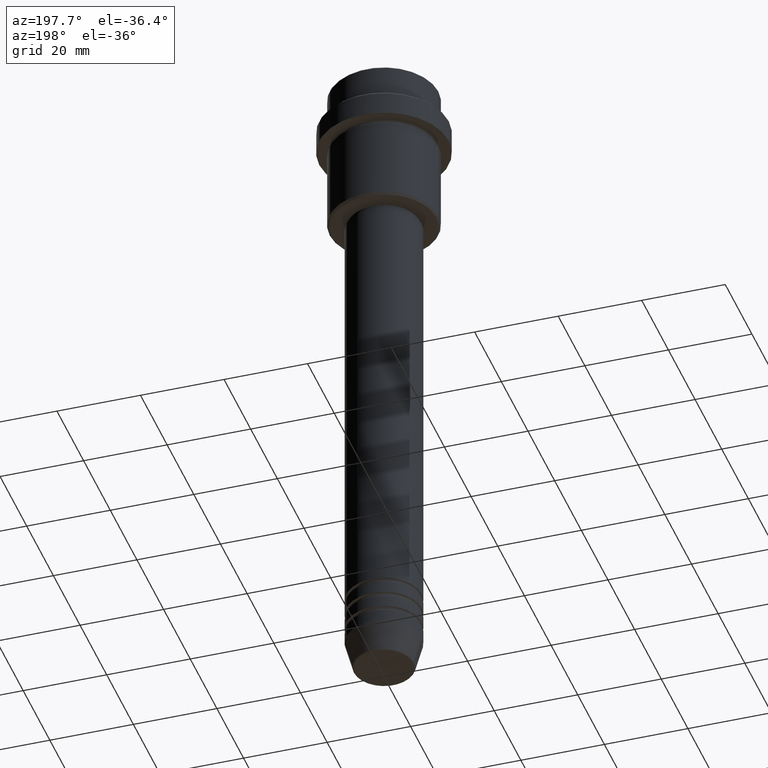
[diagram: clean part render]
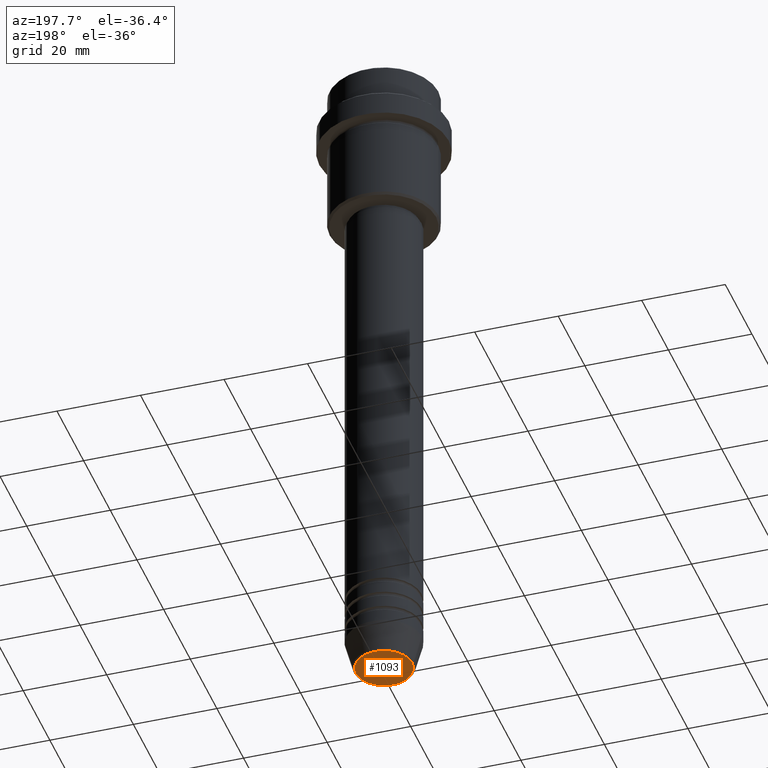
[diagram: same view with one face highlighted and labeled with its STEP entity id]
A machine part, auxiliary view. The second image highlights one B-rep face of the part: STEP entity #1093.
In plain terms, the highlighted planar face has unit normal (0, -0, 1).
Its self-contained STEP definition (entity closure, byte-faithful):
#124 = CIRCLE ( 'NONE', #1282, 6.740692158992664496 ) ;
#127 = VERTEX_POINT ( 'NONE', #356 ) ;
#198 = AXIS2_PLACEMENT_3D ( 'NONE', #204, #1401, #1188 ) ;
#204 = CARTESIAN_POINT ( 'NONE',  ( 0.000000000000000000, 0.000000000000000000, -160.9999999999999716 ) ) ;
#211 = CARTESIAN_POINT ( 'NONE',  ( 0.000000000000000000, 0.000000000000000000, -160.9999999999999716 ) ) ;
#356 = CARTESIAN_POINT ( 'NONE',  ( -6.740692158992664496, 8.550696569392693570E-16, -160.9999999999999716 ) ) ;
#554 = CIRCLE ( 'NONE', #1197, 6.740692158992664496 ) ;
#565 = VERTEX_POINT ( 'NONE', #1179 ) ;
#598 = DIRECTION ( 'NONE',  ( 1.000000000000000000, 0.000000000000000000, 0.000000000000000000 ) ) ;
#671 = EDGE_CURVE ( 'NONE', #127, #565, #124, .T. ) ;
#813 = ORIENTED_EDGE ( 'NONE', *, *, #671, .T. ) ;
#876 = FACE_OUTER_BOUND ( 'NONE', #1177, .T. ) ;
#951 = DIRECTION ( 'NONE',  ( 0.000000000000000000, 0.000000000000000000, -1.000000000000000000 ) ) ;
#1002 = EDGE_CURVE ( 'NONE', #565, #127, #554, .T. ) ;
#1093 = ADVANCED_FACE ( 'NONE', ( #876 ), #1202, .F. ) ;
#1144 = CARTESIAN_POINT ( 'NONE',  ( 0.000000000000000000, 0.000000000000000000, -160.9999999999999716 ) ) ;
#1177 = EDGE_LOOP ( 'NONE', ( #1198, #813 ) ) ;
#1179 = CARTESIAN_POINT ( 'NONE',  ( 6.740692158992664496, 0.000000000000000000, -160.9999999999999716 ) ) ;
#1188 = DIRECTION ( 'NONE',  ( 1.000000000000000000, 0.000000000000000000, 0.000000000000000000 ) ) ;
#1197 = AXIS2_PLACEMENT_3D ( 'NONE', #1144, #1371, #598 ) ;
#1198 = ORIENTED_EDGE ( 'NONE', *, *, #1002, .T. ) ;
#1202 = PLANE ( 'NONE',  #198 ) ;
#1282 = AXIS2_PLACEMENT_3D ( 'NONE', #211, #951, #1402 ) ;
#1371 = DIRECTION ( 'NONE',  ( 0.000000000000000000, 0.000000000000000000, -1.000000000000000000 ) ) ;
#1401 = DIRECTION ( 'NONE',  ( 0.000000000000000000, -0.000000000000000000, 1.000000000000000000 ) ) ;
#1402 = DIRECTION ( 'NONE',  ( 1.000000000000000000, 0.000000000000000000, 0.000000000000000000 ) ) ;